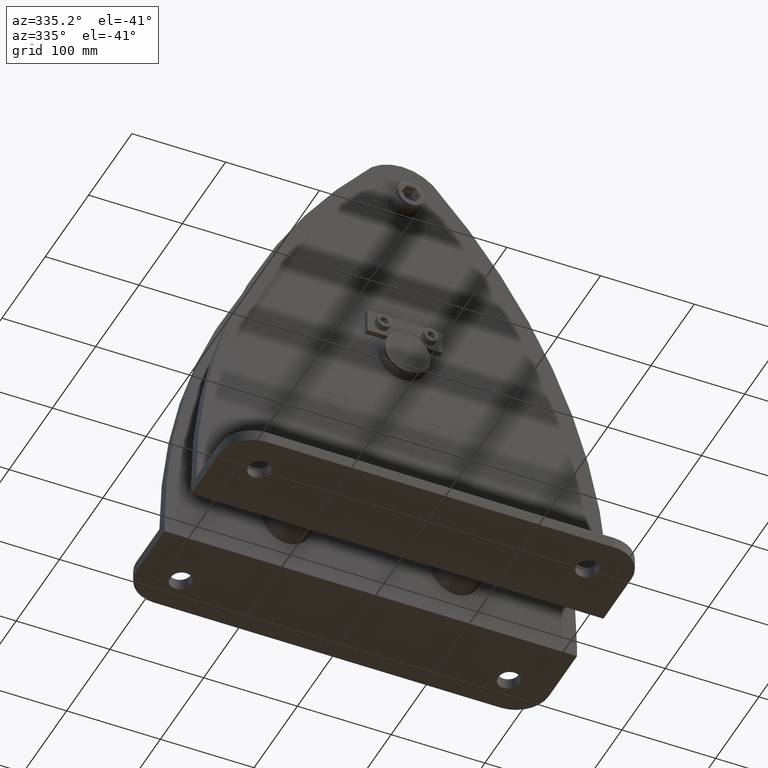
[diagram: clean part render]
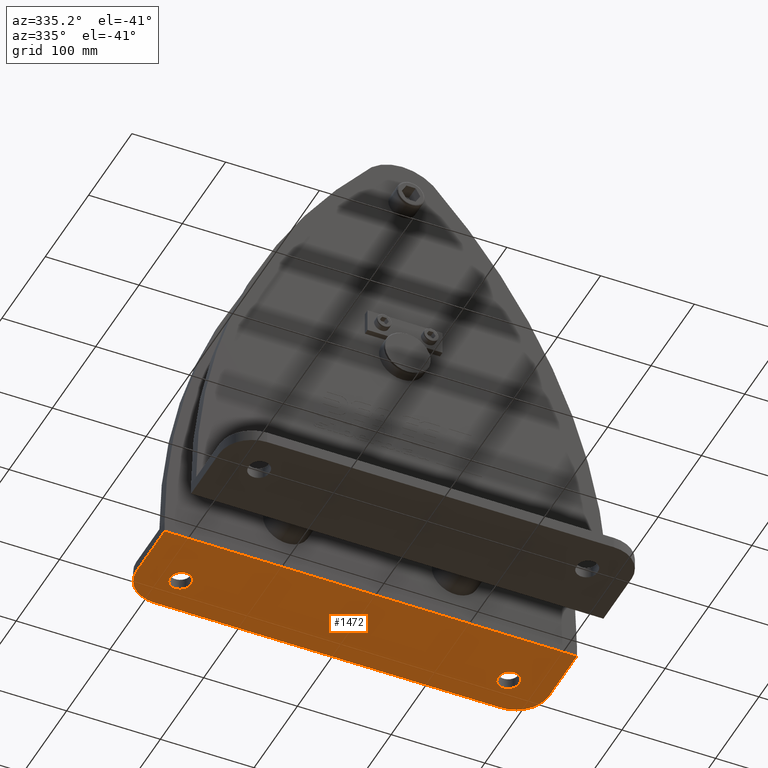
[diagram: same view with one face highlighted and labeled with its STEP entity id]
A machine part, auxiliary view. The second image highlights one B-rep face of the part: STEP entity #1472.
In plain terms, the highlighted planar face has unit normal (0, 0, -1).
Its self-contained STEP definition (entity closure, byte-faithful):
#1472=ADVANCED_FACE('',(#3217,#3218,#3219),#3220,.T.);
#3217=FACE_BOUND('',#5249,.T.);
#3218=FACE_BOUND('',#5250,.T.);
#3219=FACE_OUTER_BOUND('',#5251,.T.);
#3220=PLANE('',#5252);
#5249=EDGE_LOOP('',(#9889,#9890,#9891,#9892));
#5250=EDGE_LOOP('',(#9893,#9894,#9895,#9896));
#5251=EDGE_LOOP('',(#9897,#9898,#9899,#9900,#9901,#9902));
#5252=AXIS2_PLACEMENT_3D('',#9903,#9904,#9905);
#9889=ORIENTED_EDGE('',*,*,#13774,.T.);
#9890=ORIENTED_EDGE('',*,*,#13775,.T.);
#9891=ORIENTED_EDGE('',*,*,#13776,.T.);
#9892=ORIENTED_EDGE('',*,*,#13777,.T.);
#9893=ORIENTED_EDGE('',*,*,#13778,.T.);
#9894=ORIENTED_EDGE('',*,*,#13779,.T.);
#9895=ORIENTED_EDGE('',*,*,#13780,.T.);
#9896=ORIENTED_EDGE('',*,*,#13781,.T.);
#9897=ORIENTED_EDGE('',*,*,#13782,.T.);
#9898=ORIENTED_EDGE('',*,*,#13783,.F.);
#9899=ORIENTED_EDGE('',*,*,#13784,.F.);
#9900=ORIENTED_EDGE('',*,*,#13785,.F.);
#9901=ORIENTED_EDGE('',*,*,#13786,.F.);
#9902=ORIENTED_EDGE('',*,*,#13767,.T.);
#9903=CARTESIAN_POINT('',(0.0,30.5,-242.0));
#9904=DIRECTION('',(0.0,0.0,-1.0));
#9905=DIRECTION('',(-1.0,0.0,0.0));
#13767=EDGE_CURVE('',#17072,#17073,#17074,.T.);
#13774=EDGE_CURVE('',#17085,#17086,#17087,.T.);
#13775=EDGE_CURVE('',#17086,#17088,#17089,.T.);
#13776=EDGE_CURVE('',#17088,#17090,#17091,.T.);
#13777=EDGE_CURVE('',#17090,#17085,#17092,.T.);
#13778=EDGE_CURVE('',#17093,#17094,#17095,.T.);
#13779=EDGE_CURVE('',#17094,#17096,#17097,.T.);
#13780=EDGE_CURVE('',#17096,#17098,#17099,.T.);
#13781=EDGE_CURVE('',#17098,#17093,#17100,.T.);
#13782=EDGE_CURVE('',#17073,#17101,#17102,.T.);
#13783=EDGE_CURVE('',#17103,#17101,#17104,.T.);
#13784=EDGE_CURVE('',#17105,#17103,#17106,.T.);
#13785=EDGE_CURVE('',#17107,#17105,#17108,.T.);
#13786=EDGE_CURVE('',#17072,#17107,#17109,.T.);
#17072=VERTEX_POINT('',#24583);
#17073=VERTEX_POINT('',#24584);
#17074=LINE('',#24585,#24586);
#17085=VERTEX_POINT('',#24599);
#17086=VERTEX_POINT('',#24600);
#17087=CIRCLE('',#24601,11.0);
#17088=VERTEX_POINT('',#24602);
#17089=LINE('',#24603,#24604);
#17090=VERTEX_POINT('',#24605);
#17091=CIRCLE('',#24606,11.0);
#17092=LINE('',#24607,#24608);
#17093=VERTEX_POINT('',#24609);
#17094=VERTEX_POINT('',#24610);
#17095=CIRCLE('',#24611,11.0);
#17096=VERTEX_POINT('',#24612);
#17097=LINE('',#24613,#24614);
#17098=VERTEX_POINT('',#24615);
#17099=CIRCLE('',#24616,11.0);
#17100=LINE('',#24617,#24618);
#17101=VERTEX_POINT('',#24619);
#17102=LINE('',#24620,#24621);
#17103=VERTEX_POINT('',#24622);
#17104=CIRCLE('',#24623,35.0000000052);
#17105=VERTEX_POINT('',#24624);
#17106=LINE('',#24625,#24626);
#17107=VERTEX_POINT('',#24627);
#17108=CIRCLE('',#24628,35.0000000052);
#17109=LINE('',#24629,#24630);
#24583=CARTESIAN_POINT('',(220.0,30.5,-242.0));
#24584=CARTESIAN_POINT('',(-220.0,30.5,-242.0));
#24585=CARTESIAN_POINT('',(220.0,30.5,-242.0));
#24586=VECTOR('',#28843,1.0);
#24599=CARTESIAN_POINT('',(-164.0,92.0,-242.0));
#24600=CARTESIAN_POINT('',(-186.0,92.0,-242.0));
#24601=AXIS2_PLACEMENT_3D('',#28855,#28856,#28857);
#24602=CARTESIAN_POINT('',(-186.0,89.0,-242.0));
#24603=CARTESIAN_POINT('',(-186.0,60.5,-242.0));
#24604=VECTOR('',#28858,1.0);
#24605=CARTESIAN_POINT('',(-164.0,89.0,-242.0));
#24606=AXIS2_PLACEMENT_3D('',#28859,#28860,#28861);
#24607=CARTESIAN_POINT('',(-164.0,60.5,-242.0));
#24608=VECTOR('',#28862,1.0);
#24609=CARTESIAN_POINT('',(186.0,92.0,-242.0));
#24610=CARTESIAN_POINT('',(164.0,92.0,-242.0));
#24611=AXIS2_PLACEMENT_3D('',#28863,#28864,#28865);
#24612=CARTESIAN_POINT('',(164.0,89.0,-242.0));
#24613=CARTESIAN_POINT('',(164.0,60.5,-242.0));
#24614=VECTOR('',#28866,1.0);
#24615=CARTESIAN_POINT('',(186.0,89.0,-242.0));
#24616=AXIS2_PLACEMENT_3D('',#28867,#28868,#28869);
#24617=CARTESIAN_POINT('',(186.0,60.5,-242.0));
#24618=VECTOR('',#28870,1.0);
#24619=CARTESIAN_POINT('',(-220.0,95.4999999999924,-242.0));
#24620=CARTESIAN_POINT('',(-220.0,30.5,-242.0));
#24621=VECTOR('',#28871,1.0);
#24622=CARTESIAN_POINT('',(-184.999999999992,130.5,-242.0));
#24623=AXIS2_PLACEMENT_3D('',#28872,#28873,#28874);
#24624=CARTESIAN_POINT('',(184.999999999992,130.5,-242.0));
#24625=CARTESIAN_POINT('',(185.0,130.5,-242.0));
#24626=VECTOR('',#28875,1.0);
#24627=CARTESIAN_POINT('',(220.0,95.5,-242.0));
#24628=AXIS2_PLACEMENT_3D('',#28876,#28877,#28878);
#24629=CARTESIAN_POINT('',(220.0,30.5,-242.0));
#24630=VECTOR('',#28879,1.0);
#28843=DIRECTION('',(-1.0,0.0,0.0));
#28855=CARTESIAN_POINT('',(-175.0,92.0,-242.0));
#28856=DIRECTION('',(-0.0,0.0,1.0));
#28857=DIRECTION('',(-1.0,-3.63345717150051E-016,-0.0));
#28858=DIRECTION('',(-0.0,-1.0,-0.0));
#28859=CARTESIAN_POINT('',(-175.0,89.0,-242.0));
#28860=DIRECTION('',(0.0,-0.0,1.0));
#28861=DIRECTION('',(1.0,1.4130111222502E-016,0.0));
#28862=DIRECTION('',(-0.0,1.0,0.0));
#28863=CARTESIAN_POINT('',(175.0,92.0,-242.0));
#28864=DIRECTION('',(-0.0,0.0,1.0));
#28865=DIRECTION('',(-1.0,-3.63345717150051E-016,-0.0));
#28866=DIRECTION('',(-0.0,-1.0,-0.0));
#28867=CARTESIAN_POINT('',(175.0,89.0,-242.0));
#28868=DIRECTION('',(0.0,-0.0,1.0));
#28869=DIRECTION('',(1.0,1.4130111222502E-016,0.0));
#28870=DIRECTION('',(-0.0,1.0,0.0));
#28871=DIRECTION('',(0.0,1.0,0.0));
#28872=CARTESIAN_POINT('',(-184.9999999948,95.4999999948,-242.0));
#28873=DIRECTION('',(0.0,0.0,1.0));
#28874=DIRECTION('',(-1.48353202716259E-010,1.0,0.0));
#28875=DIRECTION('',(-1.0,0.0,0.0));
#28876=CARTESIAN_POINT('',(184.9999999948,95.4999999948,-242.0));
#28877=DIRECTION('',(0.0,-0.0,1.0));
#28878=DIRECTION('',(1.0,1.483540147651E-010,0.0));
#28879=DIRECTION('',(0.0,1.0,0.0));